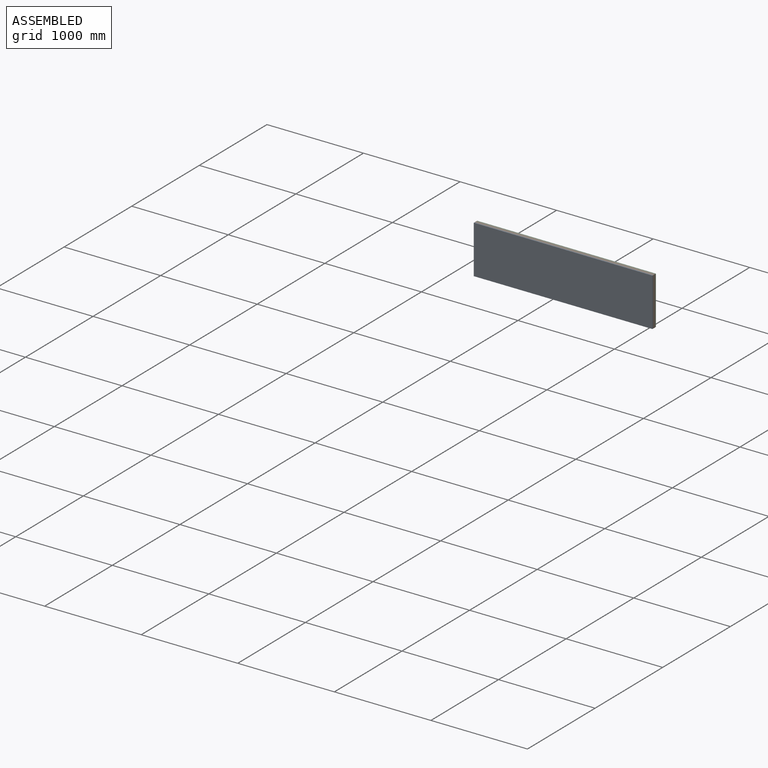
[diagram: assembled view]
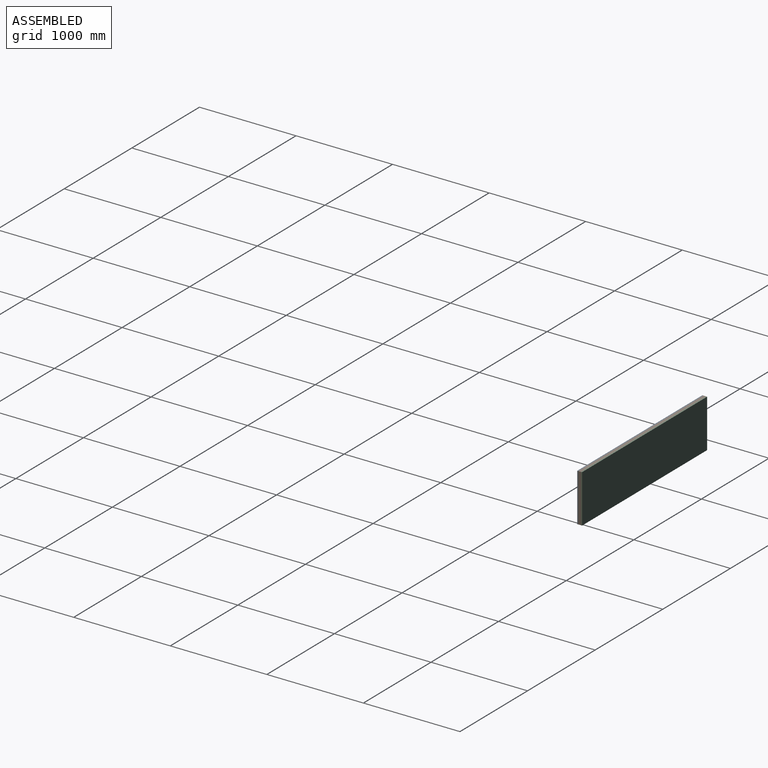
[diagram: assembled view, second angle]
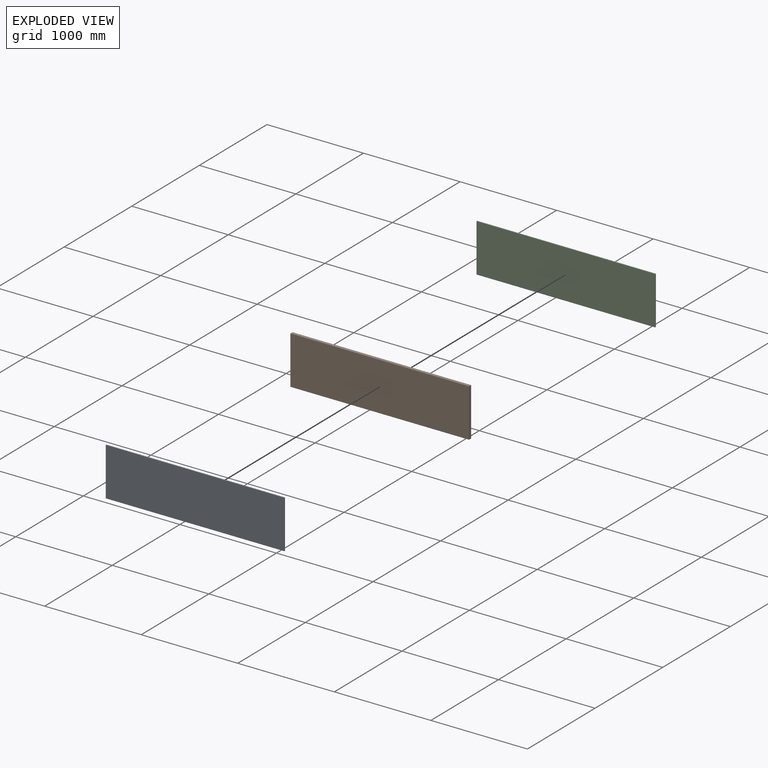
[diagram: exploded view]
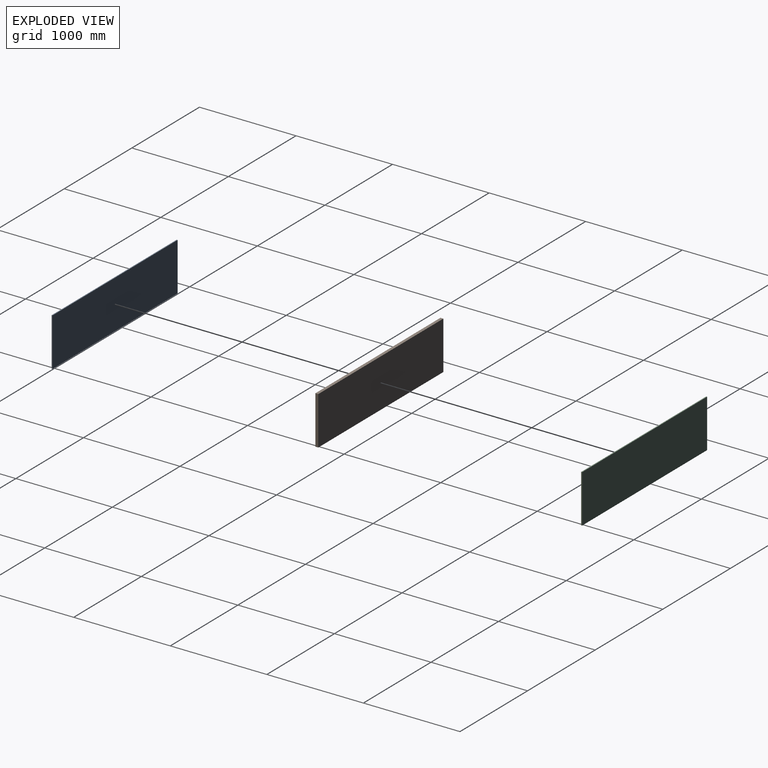
[diagram: exploded view, second angle]
ASSEMBLY  parts=3 mates=2
PART A: 6 faces, bbox 1850x10x500 mm
  f0: plane 1850x10mm, normal (0,0,-1), area 18500mm2, adj f1,f3,f4,f5
  f1: plane 500x10mm, normal (1,0,0), area 5000mm2, adj f0,f2,f4,f5
  f2: plane 1850x10mm, normal (0,0,1), area 18500mm2, adj f1,f3,f4,f5
  f3: plane 500x10mm, normal (-1,0,0), area 5000mm2, adj f0,f2,f4,f5
  f4: plane 1850x500mm, normal (0,-1,0), area 925000mm2, adj f0,f1,f2,f3
  f5: plane 1850x500mm, normal (0,1,0), area 925000mm2, adj f0,f1,f2,f3
PART B: 6 faces, bbox 1850x30x500 mm
  f0: plane 1850x500mm, normal (0,-1,0), area 925000mm2, adj f1,f3,f4,f5
  f1: plane 500x30mm, normal (1,0,0), area 15000mm2, adj f0,f2,f4,f5
  f2: plane 1850x500mm, normal (0,1,0), area 925000mm2, adj f1,f3,f4,f5
  f3: plane 500x30mm, normal (-1,0,0), area 15000mm2, adj f0,f2,f4,f5
  f4: plane 1850x30mm, normal (0,0,1), area 55500mm2, adj f0,f1,f2,f3
  f5: plane 1850x30mm, normal (0,0,-1), area 55500mm2, adj f0,f1,f2,f3
PART C: 6 faces, bbox 1850x10x500 mm
  f0: plane 500x10mm, normal (1,0,0), area 5000mm2, adj f1,f3,f4,f5
  f1: plane 1850x10mm, normal (0,0,-1), area 18500mm2, adj f0,f2,f4,f5
  f2: plane 500x10mm, normal (-1,0,0), area 5000mm2, adj f1,f3,f4,f5
  f3: plane 1850x10mm, normal (0,0,1), area 18500mm2, adj f0,f2,f4,f5
  f4: plane 1850x500mm, normal (0,1,0), area 925000mm2, adj f0,f1,f2,f3
  f5: plane 1850x500mm, normal (0,-1,0), area 925000mm2, adj f0,f1,f2,f3
PLACE A t=(144.01,487.86,-8.1)mm
PLACE B t=(144.01,487.86,-8.1)mm
PLACE C t=(144.01,487.86,-8.1)mm
MATE fastened B.f2 <-> C.f5  axis (0,1,0) through (144.01,502.86,-8.1)mm
MATE fastened B.f0 <-> A.f5  axis (0,-1,0) through (144.01,472.86,-8.1)mm
